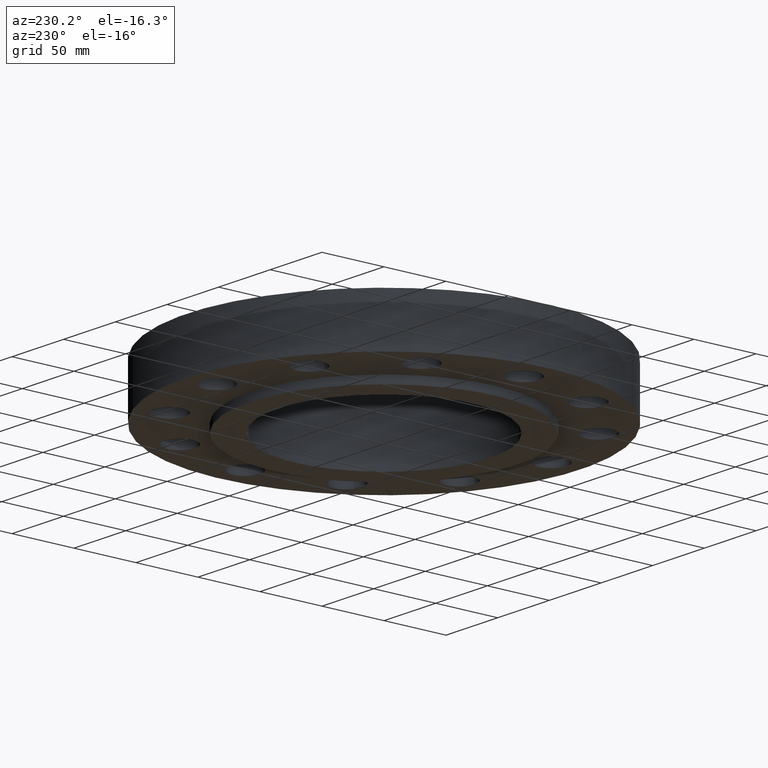
[diagram: clean part render]
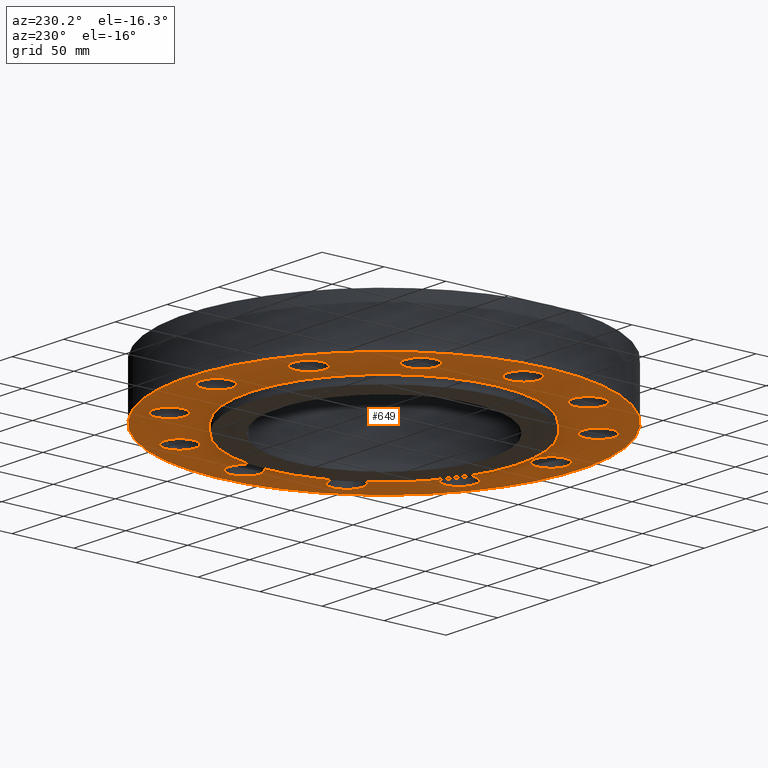
[diagram: same view with one face highlighted and labeled with its STEP entity id]
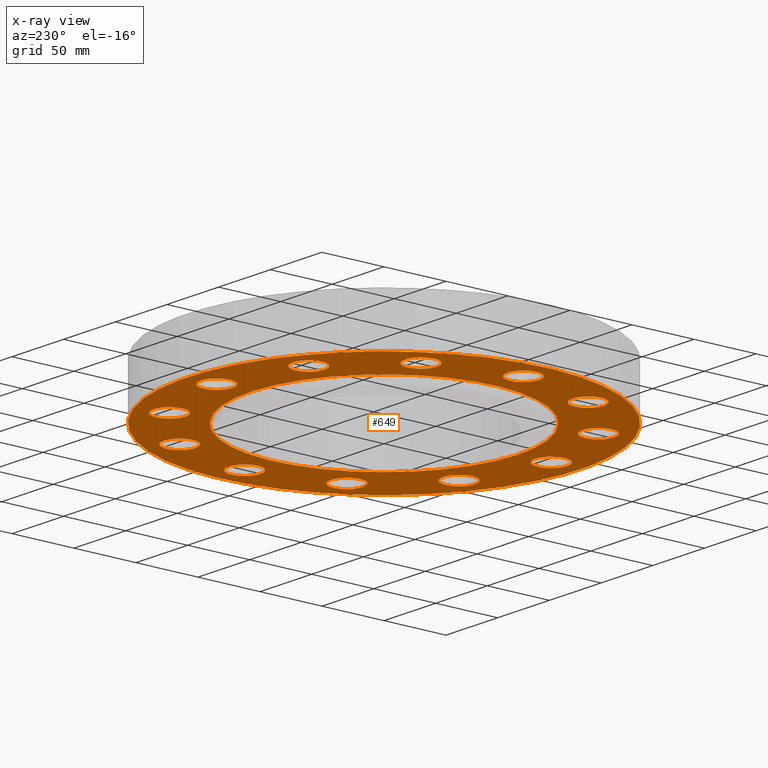
[diagram: x-ray of the same camera — body ghosted, the highlighted face saturated]
A machine part, auxiliary view. The second image highlights one B-rep face of the part: STEP entity #649.
The next image is the same camera in x-ray: the body ghosted, the highlighted face saturated — about 0% of this face is hidden behind the body in this view.
In plain terms, the highlighted planar face has unit normal (0, 0, -1).
Its self-contained STEP definition (entity closure, byte-faithful):
#51=AXIS2_PLACEMENT_3D('Circle Axis2P3D',#49,#50,$) ;
#77=AXIS2_PLACEMENT_3D('Circle Axis2P3D',#75,#76,$) ;
#99=AXIS2_PLACEMENT_3D('Circle Axis2P3D',#97,#98,$) ;
#134=AXIS2_PLACEMENT_3D('Circle Axis2P3D',#132,#133,$) ;
#405=AXIS2_PLACEMENT_3D('Circle Axis2P3D',#403,#404,$) ;
#424=AXIS2_PLACEMENT_3D('Circle Axis2P3D',#422,#423,$) ;
#437=AXIS2_PLACEMENT_3D('Plane Axis2P3D',#434,#435,#436) ;
#453=AXIS2_PLACEMENT_3D('Circle Axis2P3D',#451,#452,$) ;
#462=AXIS2_PLACEMENT_3D('Circle Axis2P3D',#460,#461,$) ;
#471=AXIS2_PLACEMENT_3D('Circle Axis2P3D',#469,#470,$) ;
#480=AXIS2_PLACEMENT_3D('Circle Axis2P3D',#478,#479,$) ;
#489=AXIS2_PLACEMENT_3D('Circle Axis2P3D',#487,#488,$) ;
#498=AXIS2_PLACEMENT_3D('Circle Axis2P3D',#496,#497,$) ;
#507=AXIS2_PLACEMENT_3D('Circle Axis2P3D',#505,#506,$) ;
#516=AXIS2_PLACEMENT_3D('Circle Axis2P3D',#514,#515,$) ;
#525=AXIS2_PLACEMENT_3D('Circle Axis2P3D',#523,#524,$) ;
#534=AXIS2_PLACEMENT_3D('Circle Axis2P3D',#532,#533,$) ;
#543=AXIS2_PLACEMENT_3D('Circle Axis2P3D',#541,#542,$) ;
#552=AXIS2_PLACEMENT_3D('Circle Axis2P3D',#550,#551,$) ;
#561=AXIS2_PLACEMENT_3D('Circle Axis2P3D',#559,#560,$) ;
#570=AXIS2_PLACEMENT_3D('Circle Axis2P3D',#568,#569,$) ;
#579=AXIS2_PLACEMENT_3D('Circle Axis2P3D',#577,#578,$) ;
#588=AXIS2_PLACEMENT_3D('Circle Axis2P3D',#586,#587,$) ;
#597=AXIS2_PLACEMENT_3D('Circle Axis2P3D',#595,#596,$) ;
#606=AXIS2_PLACEMENT_3D('Circle Axis2P3D',#604,#605,$) ;
#615=AXIS2_PLACEMENT_3D('Circle Axis2P3D',#613,#614,$) ;
#624=AXIS2_PLACEMENT_3D('Circle Axis2P3D',#622,#623,$) ;
#633=AXIS2_PLACEMENT_3D('Circle Axis2P3D',#631,#632,$) ;
#642=AXIS2_PLACEMENT_3D('Circle Axis2P3D',#640,#641,$) ;
#44=CARTESIAN_POINT('Vertex',(4.87120871907,0.239712769303,0.)) ;
#49=CARTESIAN_POINT('Axis2P3D Location',(5.31000000002,0.,0.)) ;
#53=CARTESIAN_POINT('Vertex',(5.74879128097,-0.239712769303,0.)) ;
#75=CARTESIAN_POINT('Axis2P3D Location',(5.31000000002,0.,0.)) ;
#97=CARTESIAN_POINT('Axis2P3D Location',(0.,0.,8.39223703654E-016)) ;
#101=CARTESIAN_POINT('Vertex',(-2.99640961629,-5.48489101184,6.99353086378E-016)) ;
#103=CARTESIAN_POINT('Vertex',(2.99640961629,5.48489101184,6.99353086378E-016)) ;
#132=CARTESIAN_POINT('Axis2P3D Location',(0.,0.,8.39223703654E-016)) ;
#400=CARTESIAN_POINT('Vertex',(-2.03755853908,-3.72972588805,5.59482469102E-016)) ;
#403=CARTESIAN_POINT('Axis2P3D Location',(0.,0.,5.59482469102E-016)) ;
#407=CARTESIAN_POINT('Vertex',(2.03755853908,3.72972588805,5.59482469102E-016)) ;
#422=CARTESIAN_POINT('Axis2P3D Location',(0.,0.,5.59482469102E-016)) ;
#434=CARTESIAN_POINT('Axis2P3D Location',(0.,4.25000000002,0.)) ;
#451=CARTESIAN_POINT('Axis2P3D Location',(4.59859489411,-2.65500000001,0.)) ;
#455=CARTESIAN_POINT('Vertex',(4.33844688251,-2.22800701171,0.)) ;
#457=CARTESIAN_POINT('Vertex',(4.85874290572,-3.08199298831,0.)) ;
#460=CARTESIAN_POINT('Axis2P3D Location',(4.59859489411,-2.65500000001,0.)) ;
#469=CARTESIAN_POINT('Axis2P3D Location',(2.65500000001,-4.59859489411,0.)) ;
#473=CARTESIAN_POINT('Vertex',(2.64320170737,-4.0987341132,0.)) ;
#475=CARTESIAN_POINT('Vertex',(2.66679829266,-5.09845567502,0.)) ;
#478=CARTESIAN_POINT('Axis2P3D Location',(2.65500000001,-4.59859489411,0.)) ;
#487=CARTESIAN_POINT('Axis2P3D Location',(-7.69288395016E-016,-5.31000000002,0.)) ;
#491=CARTESIAN_POINT('Vertex',(0.239712769303,-4.87120871907,0.)) ;
#493=CARTESIAN_POINT('Vertex',(-0.239712769303,-5.74879128097,0.)) ;
#496=CARTESIAN_POINT('Axis2P3D Location',(-1.18890024684E-015,-5.31000000002,0.)) ;
#505=CARTESIAN_POINT('Axis2P3D Location',(-2.65500000001,-4.59859489411,0.)) ;
#509=CARTESIAN_POINT('Vertex',(-2.22800701171,-4.33844688251,0.)) ;
#511=CARTESIAN_POINT('Vertex',(-3.08199298831,-4.85874290572,-1.67844740731E-015)) ;
#514=CARTESIAN_POINT('Axis2P3D Location',(-2.65500000001,-4.59859489411,0.)) ;
#523=CARTESIAN_POINT('Axis2P3D Location',(-4.59859489411,-2.65500000001,0.)) ;
#527=CARTESIAN_POINT('Vertex',(-4.0987341132,-2.64320170737,0.)) ;
#529=CARTESIAN_POINT('Vertex',(-5.09845567502,-2.66679829266,0.)) ;
#532=CARTESIAN_POINT('Axis2P3D Location',(-4.59859489411,-2.65500000001,0.)) ;
#541=CARTESIAN_POINT('Axis2P3D Location',(-5.31000000002,-1.1189649382E-015,0.)) ;
#545=CARTESIAN_POINT('Vertex',(-4.87120871907,-0.239712769303,0.)) ;
#547=CARTESIAN_POINT('Vertex',(-5.74879128097,0.239712769303,0.)) ;
#550=CARTESIAN_POINT('Axis2P3D Location',(-5.31000000002,0.,0.)) ;
#559=CARTESIAN_POINT('Axis2P3D Location',(-4.59859489411,2.65500000001,0.)) ;
#563=CARTESIAN_POINT('Vertex',(-4.33844688251,2.22800701171,0.)) ;
#565=CARTESIAN_POINT('Vertex',(-4.85874290572,3.08199298831,0.)) ;
#568=CARTESIAN_POINT('Axis2P3D Location',(-4.59859489411,2.65500000001,0.)) ;
#577=CARTESIAN_POINT('Axis2P3D Location',(-2.65500000001,4.59859489411,0.)) ;
#581=CARTESIAN_POINT('Vertex',(-2.64320170737,4.0987341132,0.)) ;
#583=CARTESIAN_POINT('Vertex',(-2.66679829266,5.09845567502,0.)) ;
#586=CARTESIAN_POINT('Axis2P3D Location',(-2.65500000001,4.59859489411,0.)) ;
#595=CARTESIAN_POINT('Axis2P3D Location',(-9.09159012291E-016,5.31000000002,0.)) ;
#599=CARTESIAN_POINT('Vertex',(-0.239712769303,4.87120871907,0.)) ;
#601=CARTESIAN_POINT('Vertex',(0.239712769303,5.74879128097,0.)) ;
#604=CARTESIAN_POINT('Axis2P3D Location',(-9.09159012291E-016,5.31000000002,0.)) ;
#613=CARTESIAN_POINT('Axis2P3D Location',(2.65500000001,4.59859489411,0.)) ;
#617=CARTESIAN_POINT('Vertex',(2.22800701171,4.33844688251,0.)) ;
#619=CARTESIAN_POINT('Vertex',(3.08199298831,4.85874290572,0.)) ;
#622=CARTESIAN_POINT('Axis2P3D Location',(2.65500000001,4.59859489411,0.)) ;
#631=CARTESIAN_POINT('Axis2P3D Location',(4.59859489411,2.65500000001,0.)) ;
#635=CARTESIAN_POINT('Vertex',(4.0987341132,2.64320170737,0.)) ;
#637=CARTESIAN_POINT('Vertex',(5.09845567502,2.66679829266,0.)) ;
#640=CARTESIAN_POINT('Axis2P3D Location',(4.59859489411,2.65500000001,0.)) ;
#50=DIRECTION('Axis2P3D Direction',(0.,-0.,-0.0393700787402)) ;
#76=DIRECTION('Axis2P3D Direction',(0.,-0.,-0.0393700787402)) ;
#98=DIRECTION('Axis2P3D Direction',(0.,0.,-0.0393700787402)) ;
#133=DIRECTION('Axis2P3D Direction',(0.,0.,-0.0393700787402)) ;
#404=DIRECTION('Axis2P3D Direction',(0.,0.,-0.0393700787402)) ;
#423=DIRECTION('Axis2P3D Direction',(0.,0.,-0.0393700787402)) ;
#435=DIRECTION('Axis2P3D Direction',(0.,0.,-0.0393700787402)) ;
#436=DIRECTION('Axis2P3D XDirection',(0.0393700787402,0.,0.)) ;
#452=DIRECTION('Axis2P3D Direction',(0.,0.,-0.0393700787402)) ;
#461=DIRECTION('Axis2P3D Direction',(0.,0.,-0.0393700787402)) ;
#470=DIRECTION('Axis2P3D Direction',(0.,0.,-0.0393700787402)) ;
#479=DIRECTION('Axis2P3D Direction',(0.,0.,-0.0393700787402)) ;
#488=DIRECTION('Axis2P3D Direction',(0.,0.,-0.0393700787402)) ;
#497=DIRECTION('Axis2P3D Direction',(0.,0.,-0.0393700787402)) ;
#506=DIRECTION('Axis2P3D Direction',(0.,0.,-0.0393700787402)) ;
#515=DIRECTION('Axis2P3D Direction',(0.,0.,-0.0393700787402)) ;
#524=DIRECTION('Axis2P3D Direction',(0.,0.,-0.0393700787402)) ;
#533=DIRECTION('Axis2P3D Direction',(0.,0.,-0.0393700787402)) ;
#542=DIRECTION('Axis2P3D Direction',(0.,0.,-0.0393700787402)) ;
#551=DIRECTION('Axis2P3D Direction',(0.,0.,-0.0393700787402)) ;
#560=DIRECTION('Axis2P3D Direction',(0.,0.,-0.0393700787402)) ;
#569=DIRECTION('Axis2P3D Direction',(0.,0.,-0.0393700787402)) ;
#578=DIRECTION('Axis2P3D Direction',(0.,0.,-0.0393700787402)) ;
#587=DIRECTION('Axis2P3D Direction',(0.,0.,-0.0393700787402)) ;
#596=DIRECTION('Axis2P3D Direction',(0.,0.,-0.0393700787402)) ;
#605=DIRECTION('Axis2P3D Direction',(0.,0.,-0.0393700787402)) ;
#614=DIRECTION('Axis2P3D Direction',(0.,0.,-0.0393700787402)) ;
#623=DIRECTION('Axis2P3D Direction',(0.,0.,-0.0393700787402)) ;
#632=DIRECTION('Axis2P3D Direction',(0.,0.,-0.0393700787402)) ;
#641=DIRECTION('Axis2P3D Direction',(0.,0.,-0.0393700787402)) ;
#440=ORIENTED_EDGE('',*,*,#105,.T.) ;
#441=ORIENTED_EDGE('',*,*,#136,.T.) ;
#444=ORIENTED_EDGE('',*,*,#79,.F.) ;
#445=ORIENTED_EDGE('',*,*,#55,.F.) ;
#448=ORIENTED_EDGE('',*,*,#426,.F.) ;
#449=ORIENTED_EDGE('',*,*,#409,.F.) ;
#466=ORIENTED_EDGE('',*,*,#459,.F.) ;
#467=ORIENTED_EDGE('',*,*,#464,.F.) ;
#484=ORIENTED_EDGE('',*,*,#477,.F.) ;
#485=ORIENTED_EDGE('',*,*,#482,.F.) ;
#502=ORIENTED_EDGE('',*,*,#495,.F.) ;
#503=ORIENTED_EDGE('',*,*,#500,.F.) ;
#520=ORIENTED_EDGE('',*,*,#513,.F.) ;
#521=ORIENTED_EDGE('',*,*,#518,.F.) ;
#538=ORIENTED_EDGE('',*,*,#531,.F.) ;
#539=ORIENTED_EDGE('',*,*,#536,.F.) ;
#556=ORIENTED_EDGE('',*,*,#549,.F.) ;
#557=ORIENTED_EDGE('',*,*,#554,.F.) ;
#574=ORIENTED_EDGE('',*,*,#567,.F.) ;
#575=ORIENTED_EDGE('',*,*,#572,.F.) ;
#592=ORIENTED_EDGE('',*,*,#585,.F.) ;
#593=ORIENTED_EDGE('',*,*,#590,.F.) ;
#610=ORIENTED_EDGE('',*,*,#603,.F.) ;
#611=ORIENTED_EDGE('',*,*,#608,.F.) ;
#628=ORIENTED_EDGE('',*,*,#621,.F.) ;
#629=ORIENTED_EDGE('',*,*,#626,.F.) ;
#646=ORIENTED_EDGE('',*,*,#639,.F.) ;
#647=ORIENTED_EDGE('',*,*,#644,.F.) ;
#446=FACE_BOUND('',#443,.T.) ;
#450=FACE_BOUND('',#447,.T.) ;
#468=FACE_BOUND('',#465,.T.) ;
#486=FACE_BOUND('',#483,.T.) ;
#504=FACE_BOUND('',#501,.T.) ;
#522=FACE_BOUND('',#519,.T.) ;
#540=FACE_BOUND('',#537,.T.) ;
#558=FACE_BOUND('',#555,.T.) ;
#576=FACE_BOUND('',#573,.T.) ;
#594=FACE_BOUND('',#591,.T.) ;
#612=FACE_BOUND('',#609,.T.) ;
#630=FACE_BOUND('',#627,.T.) ;
#648=FACE_BOUND('',#645,.T.) ;
#649=ADVANCED_FACE('PartBody',(#442,#446,#450,#468,#486,#504,#522,#540,#558,#576,#594,#612,#630,#648),#438,.T.) ;
#52=CIRCLE('generated circle',#51,0.500000000002) ;
#78=CIRCLE('generated circle',#77,0.500000000002) ;
#100=CIRCLE('generated circle',#99,6.25000000003) ;
#135=CIRCLE('generated circle',#134,6.25000000003) ;
#406=CIRCLE('generated circle',#405,4.25000000002) ;
#425=CIRCLE('generated circle',#424,4.25000000002) ;
#454=CIRCLE('generated circle',#453,0.500000000002) ;
#463=CIRCLE('generated circle',#462,0.500000000002) ;
#472=CIRCLE('generated circle',#471,0.500000000002) ;
#481=CIRCLE('generated circle',#480,0.500000000002) ;
#490=CIRCLE('generated circle',#489,0.500000000002) ;
#499=CIRCLE('generated circle',#498,0.500000000002) ;
#508=CIRCLE('generated circle',#507,0.500000000002) ;
#517=CIRCLE('generated circle',#516,0.500000000002) ;
#526=CIRCLE('generated circle',#525,0.500000000002) ;
#535=CIRCLE('generated circle',#534,0.500000000002) ;
#544=CIRCLE('generated circle',#543,0.500000000002) ;
#553=CIRCLE('generated circle',#552,0.500000000002) ;
#562=CIRCLE('generated circle',#561,0.500000000002) ;
#571=CIRCLE('generated circle',#570,0.500000000002) ;
#580=CIRCLE('generated circle',#579,0.500000000002) ;
#589=CIRCLE('generated circle',#588,0.500000000002) ;
#598=CIRCLE('generated circle',#597,0.500000000002) ;
#607=CIRCLE('generated circle',#606,0.500000000002) ;
#616=CIRCLE('generated circle',#615,0.500000000002) ;
#625=CIRCLE('generated circle',#624,0.500000000002) ;
#634=CIRCLE('generated circle',#633,0.500000000002) ;
#643=CIRCLE('generated circle',#642,0.500000000002) ;
#55=EDGE_CURVE('',#45,#54,#52,.T.) ;
#79=EDGE_CURVE('',#54,#45,#78,.T.) ;
#105=EDGE_CURVE('',#102,#104,#100,.T.) ;
#136=EDGE_CURVE('',#104,#102,#135,.T.) ;
#409=EDGE_CURVE('',#401,#408,#406,.T.) ;
#426=EDGE_CURVE('',#408,#401,#425,.T.) ;
#459=EDGE_CURVE('',#456,#458,#454,.T.) ;
#464=EDGE_CURVE('',#458,#456,#463,.T.) ;
#477=EDGE_CURVE('',#474,#476,#472,.T.) ;
#482=EDGE_CURVE('',#476,#474,#481,.T.) ;
#495=EDGE_CURVE('',#492,#494,#490,.T.) ;
#500=EDGE_CURVE('',#494,#492,#499,.T.) ;
#513=EDGE_CURVE('',#510,#512,#508,.T.) ;
#518=EDGE_CURVE('',#512,#510,#517,.T.) ;
#531=EDGE_CURVE('',#528,#530,#526,.T.) ;
#536=EDGE_CURVE('',#530,#528,#535,.T.) ;
#549=EDGE_CURVE('',#546,#548,#544,.T.) ;
#554=EDGE_CURVE('',#548,#546,#553,.T.) ;
#567=EDGE_CURVE('',#564,#566,#562,.T.) ;
#572=EDGE_CURVE('',#566,#564,#571,.T.) ;
#585=EDGE_CURVE('',#582,#584,#580,.T.) ;
#590=EDGE_CURVE('',#584,#582,#589,.T.) ;
#603=EDGE_CURVE('',#600,#602,#598,.T.) ;
#608=EDGE_CURVE('',#602,#600,#607,.T.) ;
#621=EDGE_CURVE('',#618,#620,#616,.T.) ;
#626=EDGE_CURVE('',#620,#618,#625,.T.) ;
#639=EDGE_CURVE('',#636,#638,#634,.T.) ;
#644=EDGE_CURVE('',#638,#636,#643,.T.) ;
#439=EDGE_LOOP('',(#440,#441)) ;
#443=EDGE_LOOP('',(#444,#445)) ;
#447=EDGE_LOOP('',(#448,#449)) ;
#465=EDGE_LOOP('',(#466,#467)) ;
#483=EDGE_LOOP('',(#484,#485)) ;
#501=EDGE_LOOP('',(#502,#503)) ;
#519=EDGE_LOOP('',(#520,#521)) ;
#537=EDGE_LOOP('',(#538,#539)) ;
#555=EDGE_LOOP('',(#556,#557)) ;
#573=EDGE_LOOP('',(#574,#575)) ;
#591=EDGE_LOOP('',(#592,#593)) ;
#609=EDGE_LOOP('',(#610,#611)) ;
#627=EDGE_LOOP('',(#628,#629)) ;
#645=EDGE_LOOP('',(#646,#647)) ;
#442=FACE_OUTER_BOUND('',#439,.T.) ;
#438=PLANE('',#437) ;
#45=VERTEX_POINT('',#44) ;
#54=VERTEX_POINT('',#53) ;
#102=VERTEX_POINT('',#101) ;
#104=VERTEX_POINT('',#103) ;
#401=VERTEX_POINT('',#400) ;
#408=VERTEX_POINT('',#407) ;
#456=VERTEX_POINT('',#455) ;
#458=VERTEX_POINT('',#457) ;
#474=VERTEX_POINT('',#473) ;
#476=VERTEX_POINT('',#475) ;
#492=VERTEX_POINT('',#491) ;
#494=VERTEX_POINT('',#493) ;
#510=VERTEX_POINT('',#509) ;
#512=VERTEX_POINT('',#511) ;
#528=VERTEX_POINT('',#527) ;
#530=VERTEX_POINT('',#529) ;
#546=VERTEX_POINT('',#545) ;
#548=VERTEX_POINT('',#547) ;
#564=VERTEX_POINT('',#563) ;
#566=VERTEX_POINT('',#565) ;
#582=VERTEX_POINT('',#581) ;
#584=VERTEX_POINT('',#583) ;
#600=VERTEX_POINT('',#599) ;
#602=VERTEX_POINT('',#601) ;
#618=VERTEX_POINT('',#617) ;
#620=VERTEX_POINT('',#619) ;
#636=VERTEX_POINT('',#635) ;
#638=VERTEX_POINT('',#637) ;